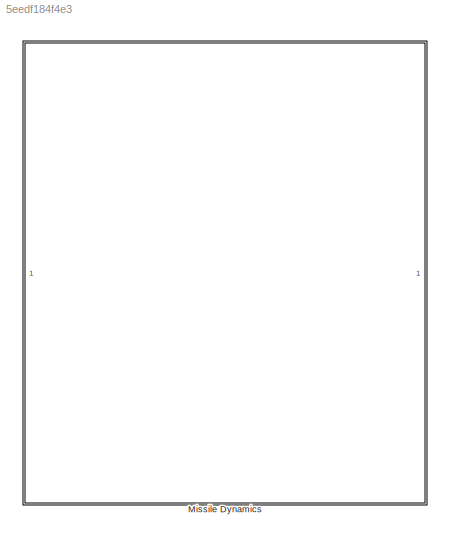
MODEL slx_5eedf184f4e3
KIND model
CONFIG AbsTol = auto
CONFIG EnableMultiTasking = off
CONFIG FixedStep = 0.002
CONFIG InitFcn = Initial_Data
CONFIG MaxStep = auto
CONFIG MinStep = auto
CONFIG RelTol = 1e-3
CONFIG SampleTimeConstraint = Unconstrained
CONFIG Solver = FixedStepAuto
CONFIG SolverName = FixedStepAuto
CONFIG StartTime = 0.0
CONFIG StopFcn = Plots_Problme_1_Part_A
CONFIG StopTime = 600
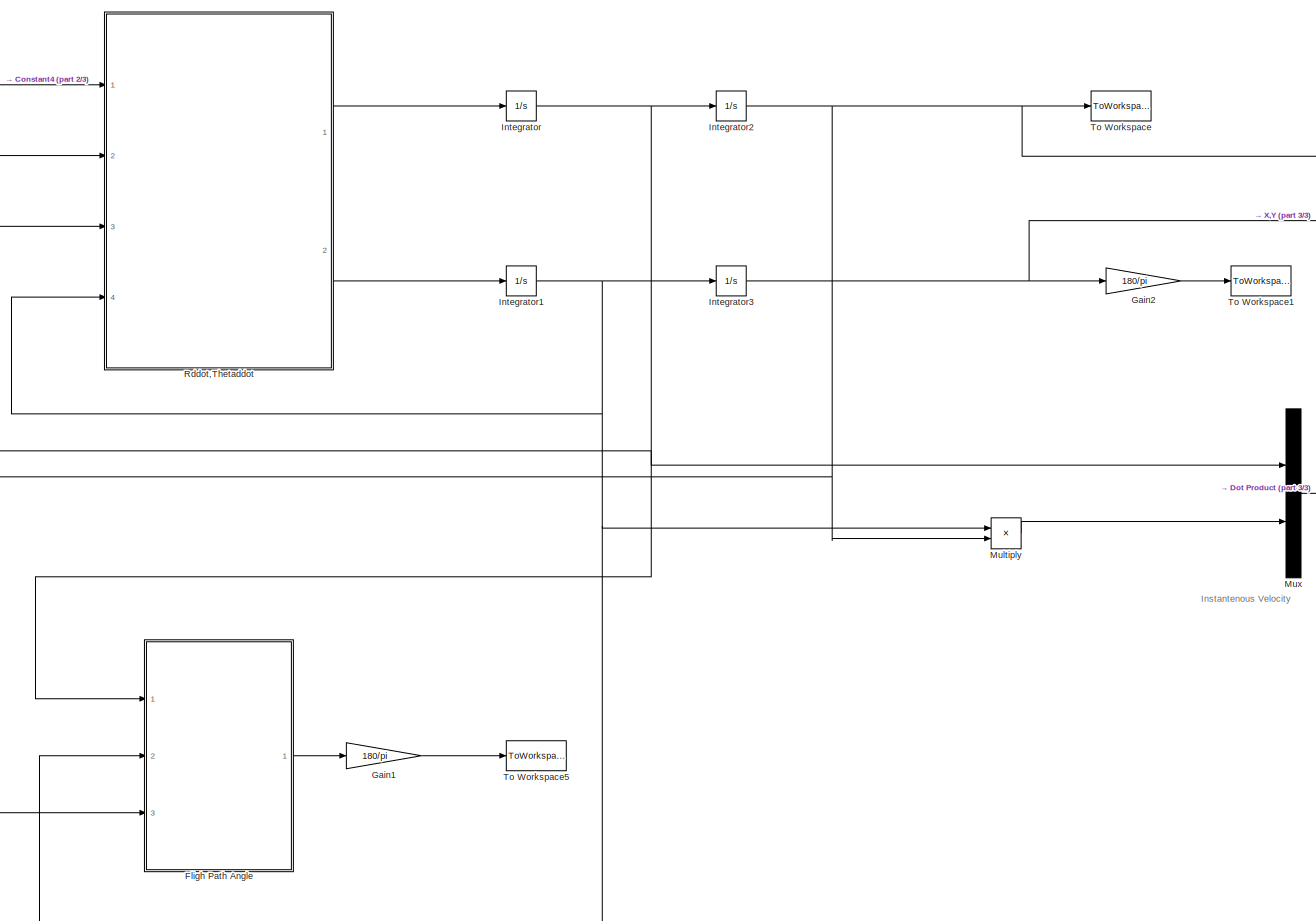
[diagram: Missile Dynamics - part 1/3, center side, full height]
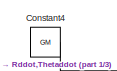
[diagram: Missile Dynamics - part 2/3, top left region]
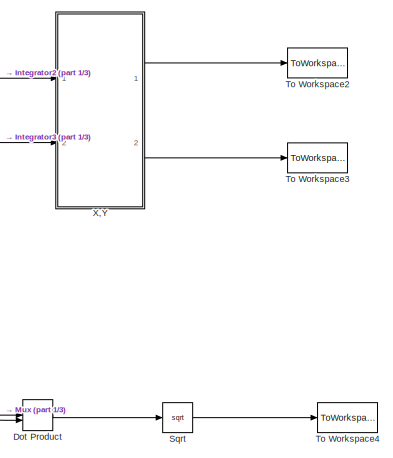
[diagram: Missile Dynamics - part 3/3, top right region]
BLOCK [SubSystem] Missile Dynamics
  Ports = []
  RequestExecContextInheritance = off
BLOCK [Constant] Missile Dynamics/Constant4
  Value = GM
BLOCK [DotProduct] Missile Dynamics/Dot Product
  OutDataTypeStr = Inherit: Inherit via internal rule
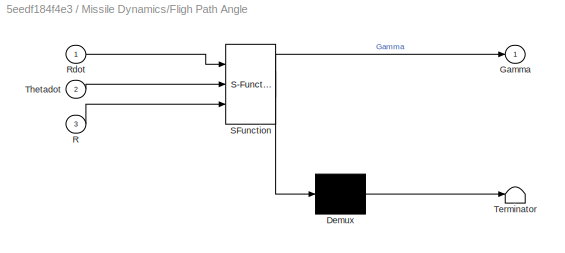
BLOCK [SubSystem] Missile Dynamics/Fligh Path Angle
  ErrorFcn = Stateflow.Translate.translate
  PermitHierarchicalResolution = ExplicitOnly
  Ports = [3, 1]
  RequestExecContextInheritance = off
  SFBlockType = MATLAB Function
  TreatAsAtomicUnit = on
BLOCK [Demux] Missile Dynamics/Fligh Path Angle/ Demux 
  Outputs = 1
  Ports = [1, 1]
BLOCK [S-Function] Missile Dynamics/Fligh Path Angle/ SFunction 
  EnableBusSupport = on
  FunctionName = sf_sfun
  PortCounts = [3 2]
  Ports = [3, 2]
  SFcnIsStateOwnerBlock = off
  SFunctionDeploymentMode = off
  Tag = Stateflow S-Function Problem_1_Part_A 1
BLOCK [Terminator] Missile Dynamics/Fligh Path Angle/ Terminator 
BLOCK [Outport] Missile Dynamics/Fligh Path Angle/Gamma
  IconDisplay = Port number
BLOCK [Inport] Missile Dynamics/Fligh Path Angle/R
  IconDisplay = Port number
  Port = 3
BLOCK [Inport] Missile Dynamics/Fligh Path Angle/Rdot
  IconDisplay = Port number
BLOCK [Inport] Missile Dynamics/Fligh Path Angle/Thetadot
  IconDisplay = Port number
  Port = 2
BLOCK [Gain] Missile Dynamics/Gain1
  Gain = 180/pi
  OutDataTypeStr = Inherit: Inherit via internal rule
  ParamDataTypeStr = Inherit: Inherit via internal rule
  SaturateOnIntegerOverflow = off
BLOCK [Gain] Missile Dynamics/Gain2
  Gain = 180/pi
  OutDataTypeStr = Inherit: Inherit via internal rule
  ParamDataTypeStr = Inherit: Inherit via internal rule
  SaturateOnIntegerOverflow = off
BLOCK [Integrator] Missile Dynamics/Integrator
  InitialCondition = V0*sin(Gamma0)
  Ports = [1, 1]
BLOCK [Integrator] Missile Dynamics/Integrator1
  InitialCondition = (V0*cos(Gamma0))/R0
  Ports = [1, 1]
BLOCK [Integrator] Missile Dynamics/Integrator2
  InitialCondition = R0
  Ports = [1, 1]
BLOCK [Integrator] Missile Dynamics/Integrator3
  InitialCondition = Long0*pi/180
  Ports = [1, 1]
BLOCK [Product] Missile Dynamics/Multiply
  InputSameDT = off
  OutDataTypeStr = Inherit: Inherit via internal rule
  Ports = [2, 1]
  RndMeth = Floor
  SaturateOnIntegerOverflow = off
BLOCK [Mux] Missile Dynamics/Mux
  DisplayOption = bar
  Inputs = 2
  Ports = [2, 1]
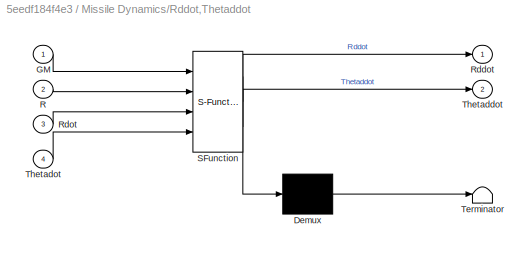
BLOCK [SubSystem] Missile Dynamics/Rddot,Thetaddot
  ErrorFcn = Stateflow.Translate.translate
  PermitHierarchicalResolution = ExplicitOnly
  Ports = [4, 2]
  RequestExecContextInheritance = off
  SFBlockType = MATLAB Function
  TreatAsAtomicUnit = on
BLOCK [Demux] Missile Dynamics/Rddot,Thetaddot/ Demux 
  Outputs = 1
  Ports = [1, 1]
BLOCK [S-Function] Missile Dynamics/Rddot,Thetaddot/ SFunction 
  EnableBusSupport = on
  FunctionName = sf_sfun
  PortCounts = [4 3]
  Ports = [4, 3]
  SFcnIsStateOwnerBlock = off
  SFunctionDeploymentMode = off
  Tag = Stateflow S-Function Problem_1_Part_A 3
BLOCK [Terminator] Missile Dynamics/Rddot,Thetaddot/ Terminator 
BLOCK [Inport] Missile Dynamics/Rddot,Thetaddot/GM
  IconDisplay = Port number
BLOCK [Inport] Missile Dynamics/Rddot,Thetaddot/R
  IconDisplay = Port number
  Port = 2
BLOCK [Outport] Missile Dynamics/Rddot,Thetaddot/Rddot
  IconDisplay = Port number
BLOCK [Inport] Missile Dynamics/Rddot,Thetaddot/Rdot
  IconDisplay = Port number
  Port = 3
BLOCK [Outport] Missile Dynamics/Rddot,Thetaddot/Thetaddot
  IconDisplay = Port number
  Port = 2
BLOCK [Inport] Missile Dynamics/Rddot,Thetaddot/Thetadot
  IconDisplay = Port number
  Port = 4
BLOCK [Sqrt] Missile Dynamics/Sqrt
BLOCK [ToWorkspace] Missile Dynamics/To Workspace
  FixptAsFi = on
  MaxDataPoints = inf
  Ports = [1]
  SampleTime = -1
  Save2DSignal = 3-D array (concatenate along third dimension)
  SaveFormat = Timeseries
  VariableName = R
BLOCK [ToWorkspace] Missile Dynamics/To Workspace1
  FixptAsFi = on
  MaxDataPoints = inf
  Ports = [1]
  SampleTime = -1
  Save2DSignal = 3-D array (concatenate along third dimension)
  SaveFormat = Timeseries
  VariableName = Theta
BLOCK [ToWorkspace] Missile Dynamics/To Workspace2
  FixptAsFi = on
  MaxDataPoints = inf
  Ports = [1]
  SampleTime = -1
  Save2DSignal = 3-D array (concatenate along third dimension)
  SaveFormat = Timeseries
  VariableName = X
BLOCK [ToWorkspace] Missile Dynamics/To Workspace3
  FixptAsFi = on
  MaxDataPoints = inf
  Ports = [1]
  SampleTime = -1
  Save2DSignal = 3-D array (concatenate along third dimension)
  SaveFormat = Timeseries
  VariableName = Y
BLOCK [ToWorkspace] Missile Dynamics/To Workspace4
  FixptAsFi = on
  MaxDataPoints = inf
  Ports = [1]
  SampleTime = -1
  Save2DSignal = 3-D array (concatenate along third dimension)
  SaveFormat = Timeseries
  VariableName = V
BLOCK [ToWorkspace] Missile Dynamics/To Workspace5
  FixptAsFi = on
  MaxDataPoints = inf
  Ports = [1]
  SampleTime = -1
  Save2DSignal = 3-D array (concatenate along third dimension)
  SaveFormat = Timeseries
  VariableName = Gamma
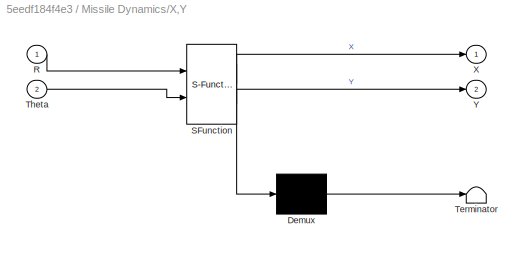
BLOCK [SubSystem] Missile Dynamics/X,Y
  ErrorFcn = Stateflow.Translate.translate
  PermitHierarchicalResolution = ExplicitOnly
  Ports = [2, 2]
  RequestExecContextInheritance = off
  SFBlockType = MATLAB Function
  TreatAsAtomicUnit = on
BLOCK [Demux] Missile Dynamics/X,Y/ Demux 
  Outputs = 1
  Ports = [1, 1]
BLOCK [S-Function] Missile Dynamics/X,Y/ SFunction 
  EnableBusSupport = on
  FunctionName = sf_sfun
  PortCounts = [2 3]
  Ports = [2, 3]
  SFcnIsStateOwnerBlock = off
  SFunctionDeploymentMode = off
  Tag = Stateflow S-Function Problem_1_Part_A 2
BLOCK [Terminator] Missile Dynamics/X,Y/ Terminator 
BLOCK [Inport] Missile Dynamics/X,Y/R
  IconDisplay = Port number
BLOCK [Inport] Missile Dynamics/X,Y/Theta
  IconDisplay = Port number
  Port = 2
BLOCK [Outport] Missile Dynamics/X,Y/X
  IconDisplay = Port number
BLOCK [Outport] Missile Dynamics/X,Y/Y
  IconDisplay = Port number
  Port = 2
ANNOTATION Missile Dynamics: Instantenous Velocity
LINE Missile Dynamics/Constant4:1 -> Missile Dynamics/Rddot,Thetaddot:1
LINE Missile Dynamics/Dot Product:1 -> Missile Dynamics/Sqrt:1
LINE Missile Dynamics/Fligh Path Angle:1 -> Missile Dynamics/Gain1:1
LINE Missile Dynamics/Gain1:1 -> Missile Dynamics/To Workspace5:1
LINE Missile Dynamics/Gain2:1 -> Missile Dynamics/To Workspace1:1
NET Missile Dynamics/Integrator1:1 -> Missile Dynamics/Fligh Path Angle:2, Missile Dynamics/Integrator3:1, Missile Dynamics/Multiply:1, Missile Dynamics/Rddot,Thetaddot:4
NET Missile Dynamics/Integrator2:1 -> Missile Dynamics/Fligh Path Angle:3, Missile Dynamics/Multiply:2, Missile Dynamics/Rddot,Thetaddot:2, Missile Dynamics/To Workspace:1, Missile Dynamics/X,Y:1
NET Missile Dynamics/Integrator3:1 -> Missile Dynamics/Gain2:1, Missile Dynamics/X,Y:2
NET Missile Dynamics/Integrator:1 -> Missile Dynamics/Fligh Path Angle:1, Missile Dynamics/Integrator2:1, Missile Dynamics/Mux:1, Missile Dynamics/Rddot,Thetaddot:3
LINE Missile Dynamics/Multiply:1 -> Missile Dynamics/Mux:2
NET Missile Dynamics/Mux:1 -> Missile Dynamics/Dot Product:1, Missile Dynamics/Dot Product:2
LINE Missile Dynamics/Rddot,Thetaddot:1 -> Missile Dynamics/Integrator:1
LINE Missile Dynamics/Rddot,Thetaddot:2 -> Missile Dynamics/Integrator1:1
LINE Missile Dynamics/Sqrt:1 -> Missile Dynamics/To Workspace4:1
LINE Missile Dynamics/X,Y:1 -> Missile Dynamics/To Workspace2:1
LINE Missile Dynamics/X,Y:2 -> Missile Dynamics/To Workspace3:1
note: NET lines group one-source signal fan-out (src -> all destinations, sorted); 1:1 wires keep LINE
CHART Missile Dynamics/Fligh Path Angle states=1 transitions=1
  STATE_LABEL 'eML_blk_kernel()'
  STATE_LABEL 'SCRIPT:\nfunction Gamma = fcn(Rdot,Thetadot,R)\n\nGamma = atan((Rdot)/(R*Thetadot));\n'
CHART Missile Dynamics/X,Y states=1 transitions=1
  STATE_LABEL 'eML_blk_kernel()'
  STATE_LABEL 'SCRIPT:\nfunction [X,Y] = fcn(R,Theta)\n\nX = R*cos(Theta);\nY = R*sin(Theta);\n'
CHART Missile Dynamics/Rddot,Thetaddot states=1 transitions=1
  STATE_LABEL 'eML_blk_kernel()'
  STATE_LABEL 'SCRIPT:\nfunction [Rddot,Thetaddot]  = fcn(GM,R,Rdot,Thetadot)\n\nRddot = R*Thetadot^2 - (GM)/(R^2);\nThetaddot = (-2*Rdot*Thetadot)/(R);\n\n'
